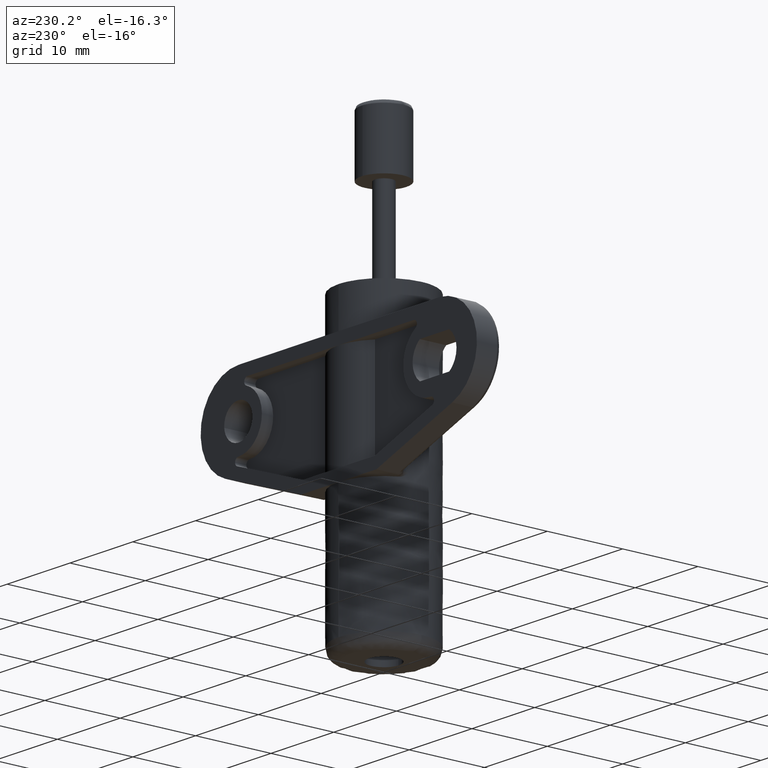
[diagram: clean part render]
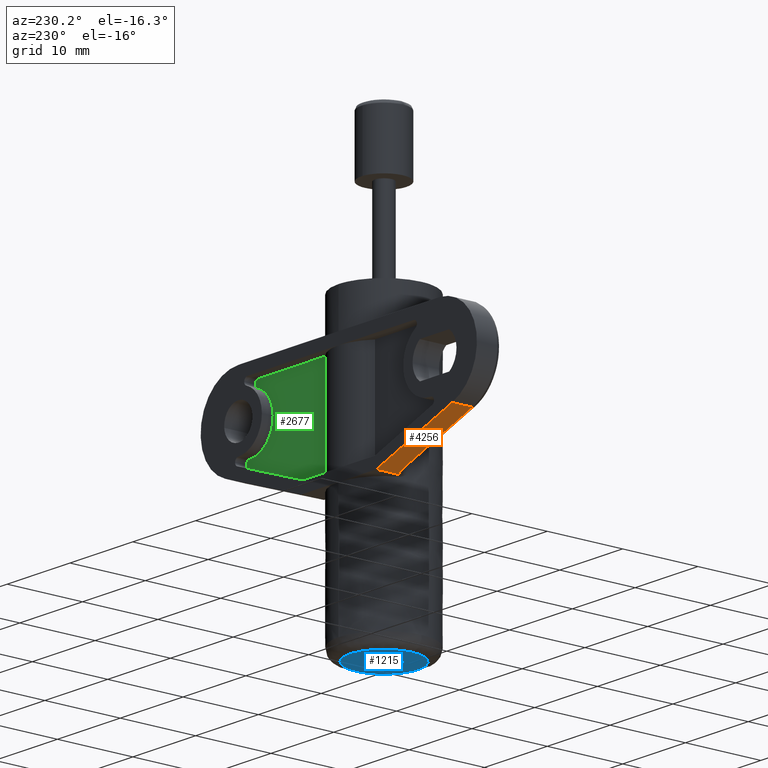
[diagram: same view with three faces highlighted in distinct colors, each labeled with its STEP entity id]
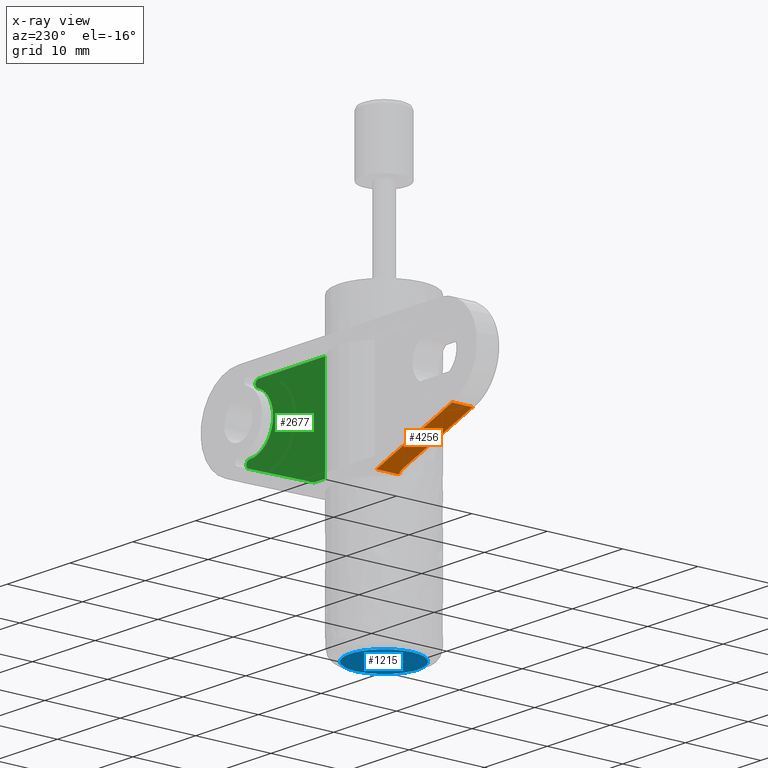
[diagram: x-ray of the same camera — body ghosted, the three highlighted faces saturated]
A machine part, auxiliary view with three faces highlighted in distinct colors.
The next image is the same camera in x-ray (body ghosted, the three faces saturated) — at least one of them is partly hidden behind the body in this view.
Their STEP definitions:

[orange] entity #4256 — the highlighted face is a freeform B-spline surface patch.
#3753=CARTESIAN_POINT('',(-18.052120859954051,3.300000000000080,-16.638155724715450));
#3754=VERTEX_POINT('',#3753);
#3811=CARTESIAN_POINT('',(-6.935623881777940,3.300000000000095,-20.684229734081750));
#3812=VERTEX_POINT('',#3811);
#3828=CARTESIAN_POINT('',(-6.935623881777940,3.300000000000095,-20.684229734081750));
#3829=CARTESIAN_POINT('',(-18.052120859954051,3.300000000000080,-16.638155724715450));
#3830=QUASI_UNIFORM_CURVE('',1,(#3828,#3829),.UNSPECIFIED.,.F.,.U.);
#3831=EDGE_CURVE('',#3812,#3754,#3830,.T.);
#3914=CARTESIAN_POINT('',(-6.026142613204830,2.992830173207870,-21.015253844465001));
#3915=VERTEX_POINT('',#3914);
#3939=CARTESIAN_POINT('',(-6.026142613204830,2.992830173207870,-21.015253844465001));
#3940=CARTESIAN_POINT('',(-6.429011204739107,3.300000000000095,-20.868621668825753));
#3941=CARTESIAN_POINT('',(-6.935623881777924,3.300000000000095,-20.684229734081711));
#3949=(BOUNDED_CURVE()B_SPLINE_CURVE(2,(#3939,#3940,#3941),.UNSPECIFIED.,.F.,.U.)CURVE()GEOMETRIC_REPRESENTATION_ITEM()QUASI_UNIFORM_CURVE()RATIONAL_B_SPLINE_CURVE((1.0,0.947422850545537,1.0))REPRESENTATION_ITEM(''));
#3950=EDGE_CURVE('',#3915,#3812,#3949,.T.);
#3975=CARTESIAN_POINT('',(-6.0,3.090490496432285,-21.024768977517500));
#3976=VERTEX_POINT('',#3975);
#3977=CARTESIAN_POINT('',(-6.0,3.090490496432285,-21.024768977517500));
#3978=CARTESIAN_POINT('',(-5.999999999999986,3.073206502566283,-21.024768977517510));
#3979=CARTESIAN_POINT('',(-6.001784299183828,3.056194304406752,-21.024119545725551));
#3980=CARTESIAN_POINT('',(-6.010245861991954,3.022915235294499,-21.021039788728011));
#3981=CARTESIAN_POINT('',(-6.016891246707941,3.007111490273606,-21.018621066496141));
#3982=CARTESIAN_POINT('',(-6.026142613204110,2.992830173207630,-21.015253844465249));
#3983=B_SPLINE_CURVE_WITH_KNOTS('',3,(#3977,#3978,#3979,#3980,#3981,#3982),.UNSPECIFIED.,.F.,.U.,(4,2,4),(0.0,0.500000000000000,1.0),.UNSPECIFIED.);
#3984=EDGE_CURVE('',#3976,#3915,#3983,.T.);
#4227=CARTESIAN_POINT('',(-18.654124273549410,2.842622046188081,-16.419044401240111));
#4228=CARTESIAN_POINT('',(-5.397996263141563,2.842622046188081,-21.243880418650971));
#4229=CARTESIAN_POINT('',(-18.654124273549410,6.150208207678369,-16.419044401240111));
#4230=CARTESIAN_POINT('',(-5.397996263141563,6.150208207678369,-21.243880418650971));
#4231=B_SPLINE_SURFACE_WITH_KNOTS('',1,1,((#4227,#4229),(#4228,#4230)),.UNSPECIFIED.,.F.,.F.,.U.,(2,2),(2,2),(0.0,14.106876777771349),(0.0,3.307586161490288),.UNSPECIFIED.);
#4232=ORIENTED_EDGE('',*,*,#3950,.T.);
#4233=ORIENTED_EDGE('',*,*,#3831,.T.);
#4234=CARTESIAN_POINT('',(-18.052120859954051,6.0,-16.638155724715450));
#4235=VERTEX_POINT('',#4234);
#4236=CARTESIAN_POINT('',(-18.052120859954051,3.300000000000080,-16.638155724715450));
#4237=CARTESIAN_POINT('',(-18.052120859954051,6.0,-16.638155724715450));
#4238=QUASI_UNIFORM_CURVE('',1,(#4236,#4237),.UNSPECIFIED.,.F.,.U.);
#4239=EDGE_CURVE('',#3754,#4235,#4238,.T.);
#4240=ORIENTED_EDGE('',*,*,#4239,.T.);
#4241=CARTESIAN_POINT('',(-6.0,6.0,-21.024768977517500));
#4242=VERTEX_POINT('',#4241);
#4243=CARTESIAN_POINT('',(-18.052120859954051,6.0,-16.638155724715450));
#4244=CARTESIAN_POINT('',(-6.0,6.0,-21.024768977517500));
#4245=QUASI_UNIFORM_CURVE('',1,(#4243,#4244),.UNSPECIFIED.,.F.,.U.);
#4246=EDGE_CURVE('',#4235,#4242,#4245,.T.);
#4247=ORIENTED_EDGE('',*,*,#4246,.T.);
#4248=CARTESIAN_POINT('',(-6.0,3.090490496432285,-21.024768977517500));
#4249=CARTESIAN_POINT('',(-6.0,6.0,-21.024768977517500));
#4250=QUASI_UNIFORM_CURVE('',1,(#4248,#4249),.UNSPECIFIED.,.F.,.U.);
#4251=EDGE_CURVE('',#3976,#4242,#4250,.T.);
#4252=ORIENTED_EDGE('',*,*,#4251,.F.);
#4253=ORIENTED_EDGE('',*,*,#3984,.T.);
#4254=EDGE_LOOP('',(#4232,#4233,#4240,#4247,#4252,#4253));
#4255=FACE_OUTER_BOUND('',#4254,.T.);
#4256=ADVANCED_FACE('',(#4255),#4231,.F.);

[blue] entity #1215 — the highlighted face is a freeform B-spline surface patch.
#1045=CARTESIAN_POINT('',(0.122097079163100,-1.996269596838022,-39.0));
#1046=VERTEX_POINT('',#1045);
#1052=CARTESIAN_POINT('',(-2.0,0.0,-39.0));
#1053=VERTEX_POINT('',#1052);
#1054=CARTESIAN_POINT('',(0.122097079163100,-1.996269596838022,-39.000000000000014));
#1055=CARTESIAN_POINT('',(0.061105526644002,-2.000000000000000,-39.0));
#1056=CARTESIAN_POINT('',(0.0,-2.0,-39.0));
#1057=CARTESIAN_POINT('',(-2.000000000000000,-2.000000000000000,-39.000000000000007));
#1058=CARTESIAN_POINT('',(-2.0,0.0,-39.0));
#1066=(BOUNDED_CURVE()B_SPLINE_CURVE(2,(#1054,#1055,#1056,#1057,#1058),.UNSPECIFIED.,.F.,.U.)B_SPLINE_CURVE_WITH_KNOTS((3,2,3),(0.239332962233897,0.250000000000000,0.500000000000000),.UNSPECIFIED.)CURVE()GEOMETRIC_REPRESENTATION_ITEM()RATIONAL_B_SPLINE_CURVE((0.976072041655902,0.987502787893925,1.0,0.707106781186548,1.0))REPRESENTATION_ITEM(''));
#1067=EDGE_CURVE('',#1046,#1053,#1066,.T.);
#1069=CARTESIAN_POINT('',(-0.122097079163100,1.996269596838022,-39.0));
#1070=VERTEX_POINT('',#1069);
#1071=CARTESIAN_POINT('',(-2.0,0.0,-39.0));
#1072=CARTESIAN_POINT('',(-2.000000000000000,1.881412133723212,-39.0));
#1073=CARTESIAN_POINT('',(-0.122097079163099,1.996269596838022,-39.0));
#1081=(BOUNDED_CURVE()B_SPLINE_CURVE(2,(#1071,#1072,#1073),.UNSPECIFIED.,.F.,.U.)B_SPLINE_CURVE_WITH_KNOTS((3,3),(0.500000000000000,0.739332962233897),.UNSPECIFIED.)CURVE()GEOMETRIC_REPRESENTATION_ITEM()RATIONAL_B_SPLINE_CURVE((1.0,0.719603993292622,0.976072041655903))REPRESENTATION_ITEM(''));
#1082=EDGE_CURVE('',#1053,#1070,#1081,.T.);
#1114=CARTESIAN_POINT('',(2.0,0.0,-39.0));
#1115=VERTEX_POINT('',#1114);
#1116=CARTESIAN_POINT('',(-0.122097079163099,1.996269596838022,-39.0));
#1117=CARTESIAN_POINT('',(-0.061105526644002,2.000000000000000,-39.0));
#1118=CARTESIAN_POINT('',(0.0,2.0,-39.0));
#1119=CARTESIAN_POINT('',(2.000000000000000,2.000000000000000,-39.000000000000007));
#1120=CARTESIAN_POINT('',(2.0,0.0,-39.0));
#1128=(BOUNDED_CURVE()B_SPLINE_CURVE(2,(#1116,#1117,#1118,#1119,#1120),.UNSPECIFIED.,.F.,.U.)B_SPLINE_CURVE_WITH_KNOTS((3,2,3),(0.739332962233897,0.750000000000000,1.0),.UNSPECIFIED.)CURVE()GEOMETRIC_REPRESENTATION_ITEM()RATIONAL_B_SPLINE_CURVE((0.976072041655903,0.987502787893925,1.0,0.707106781186548,1.0))REPRESENTATION_ITEM(''));
#1129=EDGE_CURVE('',#1070,#1115,#1128,.T.);
#1131=CARTESIAN_POINT('',(2.0,0.0,-39.0));
#1132=CARTESIAN_POINT('',(2.0,-1.881412133723212,-39.000000000000007));
#1133=CARTESIAN_POINT('',(0.122097079163100,-1.996269596838022,-39.000000000000014));
#1141=(BOUNDED_CURVE()B_SPLINE_CURVE(2,(#1131,#1132,#1133),.UNSPECIFIED.,.F.,.U.)B_SPLINE_CURVE_WITH_KNOTS((3,3),(0.0,0.239332962233897),.UNSPECIFIED.)CURVE()GEOMETRIC_REPRESENTATION_ITEM()RATIONAL_B_SPLINE_CURVE((1.0,0.719603993292622,0.976072041655902))REPRESENTATION_ITEM(''));
#1142=EDGE_CURVE('',#1115,#1046,#1141,.T.);
#1148=CARTESIAN_POINT('',(-4.949549982655821,-4.949549982556222,-39.0));
#1149=CARTESIAN_POINT('',(4.949550224054632,-4.949549982556222,-39.0));
#1150=CARTESIAN_POINT('',(-4.949549982655821,4.949550223955034,-39.0));
#1151=CARTESIAN_POINT('',(4.949550224054632,4.949550223955034,-39.0));
#1152=B_SPLINE_SURFACE_WITH_KNOTS('',1,1,((#1148,#1150),(#1149,#1151)),.UNSPECIFIED.,.F.,.F.,.U.,(2,2),(2,2),(0.0,9.899100206710454),(0.0,9.899100206511257),.UNSPECIFIED.);
#1153=CARTESIAN_POINT('',(4.500000000090524,-4.426226E-016,-39.0));
#1154=VERTEX_POINT('',#1153);
#1155=CARTESIAN_POINT('',(-4.500000000090524,1.883752E-016,-39.0));
#1156=VERTEX_POINT('',#1155);
#1157=CARTESIAN_POINT('',(4.500000000090524,-4.426226E-016,-39.0));
#1158=CARTESIAN_POINT('',(4.500042559910387,-0.294517657228034,-39.0));
#1159=CARTESIAN_POINT('',(4.451020768638517,-0.791508233343678,-39.000000000000043));
#1160=CARTESIAN_POINT('',(4.263372498074774,-1.486150148910529,-38.999999999999808));
#1161=CARTESIAN_POINT('',(4.008846228135877,-2.079929880336588,-39.000000000000533));
#1162=CARTESIAN_POINT('',(3.679626586651887,-2.614205294548314,-38.999999999999140));
#1163=CARTESIAN_POINT('',(3.258434787892929,-3.127430699156972,-39.000000000001073));
#1164=CARTESIAN_POINT('',(2.697183605855279,-3.636184996366057,-38.999999999999503));
#1165=CARTESIAN_POINT('',(2.080339544139726,-4.011056212006841,-38.999999999999687));
#1166=CARTESIAN_POINT('',(1.433288182884059,-4.279035904452938,-39.000000000001329));
#1167=CARTESIAN_POINT('',(0.862818359593501,-4.433152210595325,-38.999999999996767));
#1168=CARTESIAN_POINT('',(0.166500656685539,-4.514696801073890,-39.000000000004157));
#1169=CARTESIAN_POINT('',(-0.516631667729752,-4.489543202659323,-38.999999999998543));
#1170=CARTESIAN_POINT('',(-1.240751131939314,-4.345507217242377,-38.999999999999979));
#1171=CARTESIAN_POINT('',(-1.898849363030401,-4.100890648773405,-38.999999999999538));
#1172=CARTESIAN_POINT('',(-2.476987409346425,-3.773348478417377,-39.000000000001322));
#1173=CARTESIAN_POINT('',(-3.078803374643353,-3.315542143559386,-38.999999999998380));
#1174=CARTESIAN_POINT('',(-3.592527018514505,-2.755675872513014,-39.000000000000860));
#1175=CARTESIAN_POINT('',(-4.076666698201838,-1.969929207754713,-39.000000000000902));
#1176=CARTESIAN_POINT('',(-4.411434449131041,-1.086022969682356,-38.999999999996120));
#1177=CARTESIAN_POINT('',(-4.500079155772156,-0.368150317699393,-39.000000000004221));
#1178=CARTESIAN_POINT('',(-4.500000000090524,1.883752E-016,-39.0));
#1179=B_SPLINE_CURVE_WITH_KNOTS('',3,(#1157,#1158,#1159,#1160,#1161,#1162,#1163,#1164,#1165,#1166,#1167,#1168,#1169,#1170,#1171,#1172,#1173,#1174,#1175,#1176,#1177,#1178),.UNSPECIFIED.,.F.,.U.,(4,1,1,1,1,1,1,1,1,1,1,1,1,1,1,1,1,1,1,4),(0.000000039361909,0.883546432129444,1.491034703174499,2.153722565223943,2.816407449302128,3.368642367299472,4.141776041198424,5.080596976702754,5.522387963880348,6.240288106694830,6.847751373951272,7.620833722153686,8.283547382602041,9.056675743110976,9.719362069528547,10.271596544277561,11.320850355845060,11.983538033921869,13.032813431337260,14.137255646073999),.UNSPECIFIED.);
#1180=EDGE_CURVE('',#1154,#1156,#1179,.T.);
#1181=ORIENTED_EDGE('',*,*,#1180,.T.);
#1182=CARTESIAN_POINT('',(-4.500000000090524,1.883752E-016,-39.0));
#1183=CARTESIAN_POINT('',(-4.500039540169186,0.294516292544356,-39.000000000000043));
#1184=CARTESIAN_POINT('',(-4.451023200453044,0.791509364175565,-38.999999999999908));
#1185=CARTESIAN_POINT('',(-4.263372254754068,1.486149488387746,-39.000000000000142));
#1186=CARTESIAN_POINT('',(-4.008844123517169,2.079928869301602,-38.999999999999943));
#1187=CARTESIAN_POINT('',(-3.640907279487072,2.677072938465765,-39.000000000000007));
#1188=CARTESIAN_POINT('',(-3.206459254256126,3.180708654250102,-39.000000000000107));
#1189=CARTESIAN_POINT('',(-2.703716194101463,3.614363652177075,-39.000000000000071));
#1190=CARTESIAN_POINT('',(-2.162207132109978,3.966670045963127,-39.000000000000043));
#1191=CARTESIAN_POINT('',(-1.556107093899887,4.239784572760546,-38.999999999999460));
#1192=CARTESIAN_POINT('',(-0.899320961351761,4.425873761887700,-39.000000000000703));
#1193=CARTESIAN_POINT('',(-0.093542527304156,4.530386305762636,-38.999999999999332));
#1194=CARTESIAN_POINT('',(0.757267184261171,4.467592684656659,-38.999999999999659));
#1195=CARTESIAN_POINT('',(1.645613347934400,4.215837818721241,-39.000000000000668));
#1196=CARTESIAN_POINT('',(2.375263099279015,3.854188890910736,-38.999999999999922));
#1197=CARTESIAN_POINT('',(3.081042593977945,3.317171601389178,-39.000000000000512));
#1198=CARTESIAN_POINT('',(3.611876819891737,2.724229972367891,-38.999999999999673));
#1199=CARTESIAN_POINT('',(4.028217329196028,2.048496312863835,-39.000000000000163));
#1200=CARTESIAN_POINT('',(4.275675329221897,1.451067864132410,-38.999999999999922));
#1201=CARTESIAN_POINT('',(4.454653892046980,0.754699215369987,-39.000000000000043));
#1202=CARTESIAN_POINT('',(4.500036004062278,0.294524060202017,-38.999999999999993));
#1203=CARTESIAN_POINT('',(4.500000000090524,-4.426226E-016,-39.0));
#1204=B_SPLINE_CURVE_WITH_KNOTS('',3,(#1182,#1183,#1184,#1185,#1186,#1187,#1188,#1189,#1190,#1191,#1192,#1193,#1194,#1195,#1196,#1197,#1198,#1199,#1200,#1201,#1202,#1203),.UNSPECIFIED.,.F.,.U.,(4,1,1,1,1,1,1,1,1,1,1,1,1,1,1,1,1,1,1,4),(0.000000039377438,0.883546432144074,1.491034703188504,2.153722565237251,2.816407449314747,3.589539633228297,4.141776041209690,4.804466194655808,5.522387963890113,6.129834537014117,6.847751373959533,7.952179693751249,8.670109651513370,9.608904500944760,10.382046633112360,11.320850355848339,11.983538033924360,12.756673786250991,13.253687031879030,14.137255646073930),.UNSPECIFIED.);
#1205=EDGE_CURVE('',#1156,#1154,#1204,.T.);
#1206=ORIENTED_EDGE('',*,*,#1205,.T.);
#1207=EDGE_LOOP('',(#1181,#1206));
#1208=FACE_OUTER_BOUND('',#1207,.T.);
#1209=ORIENTED_EDGE('',*,*,#1082,.F.);
#1210=ORIENTED_EDGE('',*,*,#1067,.F.);
#1211=ORIENTED_EDGE('',*,*,#1142,.F.);
#1212=ORIENTED_EDGE('',*,*,#1129,.F.);
#1213=EDGE_LOOP('',(#1209,#1210,#1211,#1212));
#1214=FACE_BOUND('',#1213,.T.);
#1215=ADVANCED_FACE('',(#1208,#1214),#1152,.F.);

[green] entity #2677 — the highlighted face is a freeform B-spline surface patch.
#2588=CARTESIAN_POINT('',(3.341759546479060,4.500000000000000,-5.849412814817530));
#2589=CARTESIAN_POINT('',(17.145393510936220,4.500000000000000,-5.849412814817530));
#2590=CARTESIAN_POINT('',(3.341759546479060,4.500000000000000,-20.175356512051501));
#2591=CARTESIAN_POINT('',(17.145393510936220,4.500000000000000,-20.175356512051501));
#2592=B_SPLINE_SURFACE_WITH_KNOTS('',1,1,((#2588,#2590),(#2589,#2591)),.UNSPECIFIED.,.F.,.F.,.U.,(2,2),(2,2),(0.0,13.803633964457161),(0.0,14.325943697233971),.UNSPECIFIED.);
#2593=CARTESIAN_POINT('',(3.968626966596930,4.500000000000000,-19.524768977517450));
#2594=VERTEX_POINT('',#2593);
#2595=CARTESIAN_POINT('',(3.968626966596925,4.499999999999949,-6.500000000000000));
#2596=VERTEX_POINT('',#2595);
#2597=CARTESIAN_POINT('',(3.968626966596930,4.500000000000000,-19.524768977517450));
#2598=CARTESIAN_POINT('',(3.968626966596925,4.499999999999949,-6.500000000000000));
#2599=QUASI_UNIFORM_CURVE('',1,(#2597,#2598),.UNSPECIFIED.,.F.,.U.);
#2600=EDGE_CURVE('',#2594,#2596,#2599,.T.);
#2601=ORIENTED_EDGE('',*,*,#2600,.T.);
#2602=CARTESIAN_POINT('',(14.563859338365541,4.499999999999949,-6.500000000000000));
#2603=VERTEX_POINT('',#2602);
#2604=CARTESIAN_POINT('',(3.968626966596925,4.499999999999949,-6.500000000000000));
#2605=CARTESIAN_POINT('',(14.563859338365541,4.499999999999949,-6.500000000000000));
#2606=QUASI_UNIFORM_CURVE('',1,(#2604,#2605),.UNSPECIFIED.,.F.,.U.);
#2607=EDGE_CURVE('',#2596,#2603,#2606,.T.);
#2608=ORIENTED_EDGE('',*,*,#2607,.T.);
#2609=CARTESIAN_POINT('',(14.732817063263720,4.499999999999949,-7.470588235294100));
#2610=VERTEX_POINT('',#2609);
#2611=CARTESIAN_POINT('',(14.732817063263720,4.499999999999949,-7.470588235294100));
#2612=CARTESIAN_POINT('',(14.787676223874881,4.499999999999953,-7.450941955850121));
#2613=CARTESIAN_POINT('',(14.864663133860070,4.499999999999951,-7.406821610159931));
#2614=CARTESIAN_POINT('',(14.968468578407370,4.499999999999952,-7.303810708084275));
#2615=CARTESIAN_POINT('',(15.046602675855921,4.499999999999949,-7.169581717683233));
#2616=CARTESIAN_POINT('',(15.075339743506150,4.499999999999949,-6.986173264118675));
#2617=CARTESIAN_POINT('',(15.038824884833691,4.499999999999949,-6.820048325352172));
#2618=CARTESIAN_POINT('',(14.969211801363571,4.499999999999952,-6.699071562452828));
#2619=CARTESIAN_POINT('',(14.873081375267930,4.499999999999950,-6.598337850780758));
#2620=CARTESIAN_POINT('',(14.738641125278621,4.499999999999948,-6.520594775218759));
#2621=CARTESIAN_POINT('',(14.622125001668010,4.499999999999954,-6.499959176902625));
#2622=CARTESIAN_POINT('',(14.563859338365541,4.499999999999949,-6.500000000000000));
#2623=B_SPLINE_CURVE_WITH_KNOTS('',3,(#2611,#2612,#2613,#2614,#2615,#2616,#2617,#2618,#2619,#2620,#2621,#2622),.UNSPECIFIED.,.F.,.U.,(4,1,1,1,1,1,1,1,1,4),(-0.000004838107107,0.174809470682162,0.262223455506100,0.437055181370182,0.633745788815364,0.808511925471042,0.939639274648658,1.048915184277765,1.223755839712620,1.398554335644696),.UNSPECIFIED.);
#2624=EDGE_CURVE('',#2610,#2603,#2623,.T.);
#2625=ORIENTED_EDGE('',*,*,#2624,.F.);
#2626=CARTESIAN_POINT('',(16.016367462783251,4.499999999999949,-14.749964280651501));
#2627=VERTEX_POINT('',#2626);
#2628=CARTESIAN_POINT('',(14.732817063263720,4.499999999999949,-7.470588235294100));
#2629=CARTESIAN_POINT('',(14.372277741733580,4.499999999999940,-7.599831014855825));
#2630=CARTESIAN_POINT('',(13.837474142295351,4.499999999999966,-7.890896957690750));
#2631=CARTESIAN_POINT('',(13.157252789385691,4.499999999999966,-8.510300571550728));
#2632=CARTESIAN_POINT('',(12.741419132292210,4.499999999999909,-9.094243682647525));
#2633=CARTESIAN_POINT('',(12.410153020956010,4.500000000000019,-9.832414824746644));
#2634=CARTESIAN_POINT('',(12.231815673711839,4.499999999999854,-10.611886142202581));
#2635=CARTESIAN_POINT('',(12.251262556758570,4.499999999999982,-11.521010870351180));
#2636=CARTESIAN_POINT('',(12.443480149785429,4.499999999999949,-12.253446070133050));
#2637=CARTESIAN_POINT('',(12.716268086453409,4.499999999999949,-12.837094922556171));
#2638=CARTESIAN_POINT('',(13.031716938626900,4.499999999999953,-13.319235293102651));
#2639=CARTESIAN_POINT('',(13.514994235420421,4.499999999999947,-13.844822391786209));
#2640=CARTESIAN_POINT('',(14.199263668317290,4.499999999999953,-14.332763765833620));
#2641=CARTESIAN_POINT('',(15.072284755282411,4.499999999999949,-14.674447917901411));
#2642=CARTESIAN_POINT('',(15.701768599348100,4.499999999999946,-14.751422744167639));
#2643=CARTESIAN_POINT('',(16.016367462783251,4.499999999999949,-14.749964280651501));
#2644=B_SPLINE_CURVE_WITH_KNOTS('',3,(#2628,#2629,#2630,#2631,#2632,#2633,#2634,#2635,#2636,#2637,#2638,#2639,#2640,#2641,#2642,#2643),.UNSPECIFIED.,.F.,.U.,(4,1,1,1,1,1,1,1,1,1,1,1,1,4),(0.000000129040529,1.148939109419070,1.805499467127252,2.749295916954067,3.282749753025090,4.226550517554506,5.129307404336462,5.990981612437284,6.483386515605339,7.057882470204087,7.714435741453849,8.617191195991447,9.560976973285717,10.504762947298159),.UNSPECIFIED.);
#2645=EDGE_CURVE('',#2610,#2627,#2644,.T.);
#2646=ORIENTED_EDGE('',*,*,#2645,.T.);
#2647=CARTESIAN_POINT('',(16.189559862817251,4.499999999999949,-15.719805828464651));
#2648=VERTEX_POINT('',#2647);
#2649=CARTESIAN_POINT('',(16.189559862817251,4.499999999999949,-15.719805828464651));
#2650=CARTESIAN_POINT('',(16.244328722090231,4.499999999999956,-15.699916753834669));
#2651=CARTESIAN_POINT('',(16.346750535591191,4.499999999999941,-15.640666911406960));
#2652=CARTESIAN_POINT('',(16.465550281988321,4.499999999999961,-15.498976494943120));
#2653=CARTESIAN_POINT('',(16.524941440599420,4.499999999999927,-15.323087948146810));
#2654=CARTESIAN_POINT('',(16.516512433857940,4.499999999999962,-15.138393450537230));
#2655=CARTESIAN_POINT('',(16.450995856825720,4.499999999999981,-14.981422176287460));
#2656=CARTESIAN_POINT('',(16.338863483282331,4.499999999999932,-14.854297206308850));
#2657=CARTESIAN_POINT('',(16.191232622149620,4.499999999999955,-14.769796721254259));
#2658=CARTESIAN_POINT('',(16.074633239805951,4.499999999999946,-14.749669097639510));
#2659=CARTESIAN_POINT('',(16.016367462783251,4.499999999999949,-14.749964280651501));
#2660=B_SPLINE_CURVE_WITH_KNOTS('',3,(#2649,#2650,#2651,#2652,#2653,#2654,#2655,#2656,#2657,#2658,#2659),.UNSPECIFIED.,.F.,.U.,(4,1,1,1,1,1,1,1,4),(-0.000004838106648,0.174809470682651,0.349638200729066,0.546330485432249,0.721115219625080,0.895929344867257,1.048915184277931,1.223755839712700,1.398554335644761),.UNSPECIFIED.);
#2661=EDGE_CURVE('',#2648,#2627,#2660,.T.);
#2662=ORIENTED_EDGE('',*,*,#2661,.F.);
#2663=CARTESIAN_POINT('',(5.735509528937310,4.499999999999949,-19.524768977517500));
#2664=VERTEX_POINT('',#2663);
#2665=CARTESIAN_POINT('',(16.189559862817251,4.499999999999949,-15.719805828464651));
#2666=CARTESIAN_POINT('',(5.735509528937310,4.499999999999949,-19.524768977517500));
#2667=QUASI_UNIFORM_CURVE('',1,(#2665,#2666),.UNSPECIFIED.,.F.,.U.);
#2668=EDGE_CURVE('',#2648,#2664,#2667,.T.);
#2669=ORIENTED_EDGE('',*,*,#2668,.T.);
#2670=CARTESIAN_POINT('',(5.735509528937310,4.499999999999949,-19.524768977517500));
#2671=CARTESIAN_POINT('',(3.968626966596930,4.500000000000000,-19.524768977517450));
#2672=QUASI_UNIFORM_CURVE('',1,(#2670,#2671),.UNSPECIFIED.,.F.,.U.);
#2673=EDGE_CURVE('',#2664,#2594,#2672,.T.);
#2674=ORIENTED_EDGE('',*,*,#2673,.T.);
#2675=EDGE_LOOP('',(#2601,#2608,#2625,#2646,#2662,#2669,#2674));
#2676=FACE_OUTER_BOUND('',#2675,.T.);
#2677=ADVANCED_FACE('',(#2676),#2592,.T.);